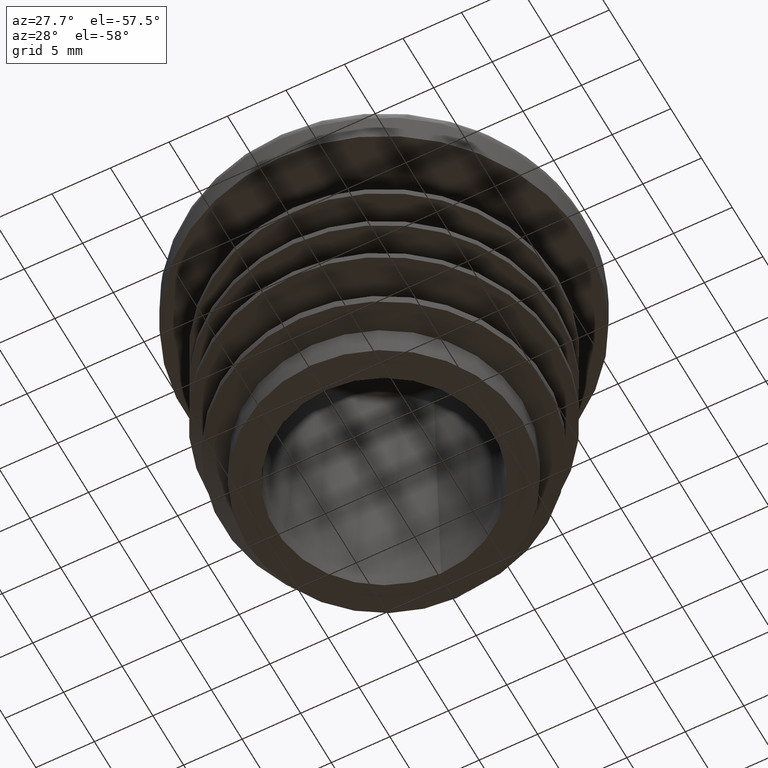
[diagram: clean part render]
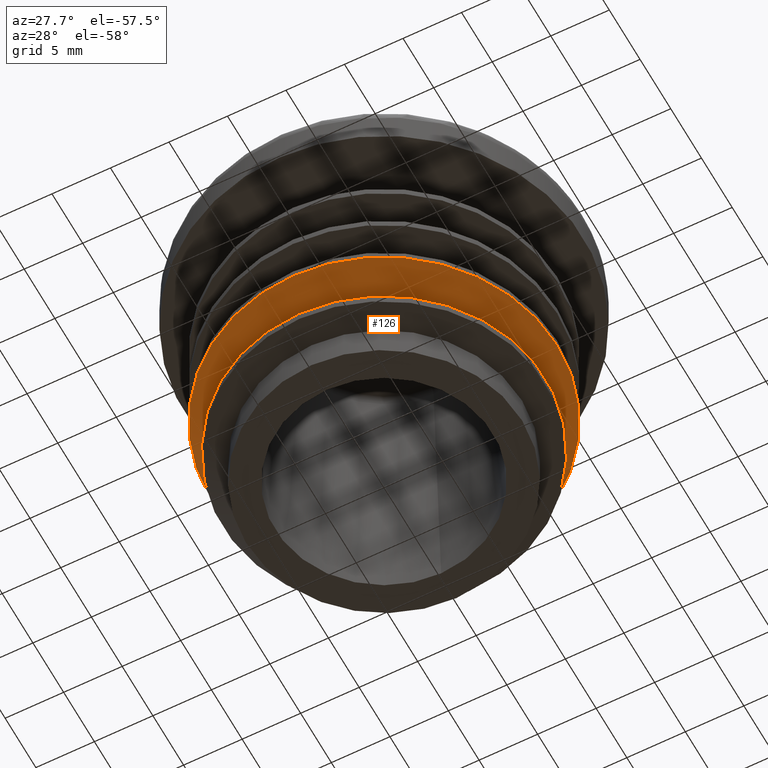
[diagram: same view with one face highlighted and labeled with its STEP entity id]
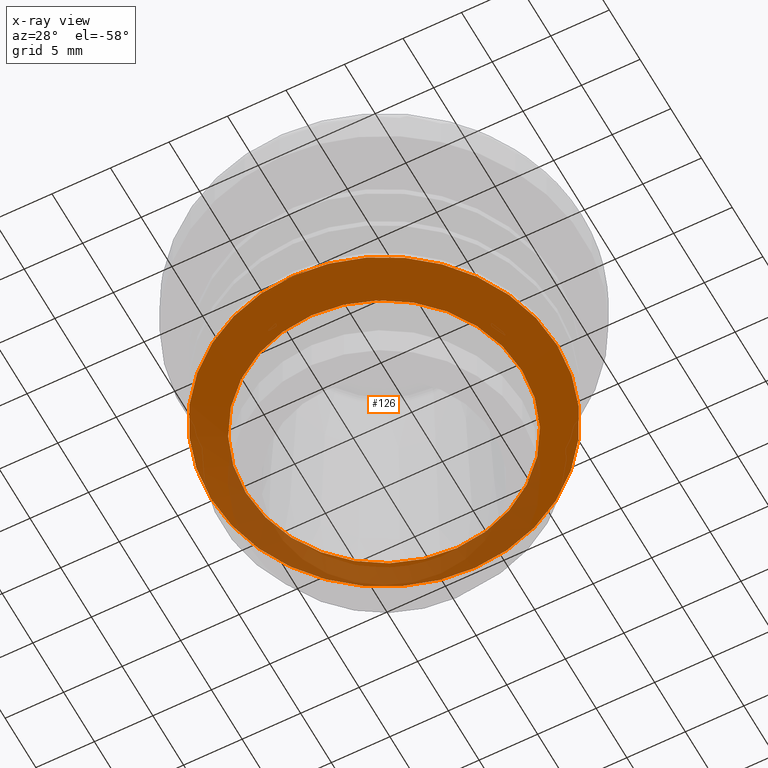
[diagram: x-ray of the same camera — body ghosted, the highlighted face saturated]
A machine part, auxiliary view. The second image highlights one B-rep face of the part: STEP entity #126.
The next image is the same camera in x-ray: the body ghosted, the highlighted face saturated — about 25% of this face is hidden behind the body in this view.
In plain terms, the highlighted conical surface has half-angle 65 deg.
Its self-contained STEP definition (entity closure, byte-faithful):
#126 = ADVANCED_FACE( '', ( #291, #292 ), #293, .T. );
#291 = FACE_BOUND( '', #717, .T. );
#292 = FACE_OUTER_BOUND( '', #718, .T. );
#293 = CONICAL_SURFACE( '', #719, 14.8000000000000, 1.13446401379631 );
#717 = EDGE_LOOP( '', ( #1231 ) );
#718 = EDGE_LOOP( '', ( #1232 ) );
#719 = AXIS2_PLACEMENT_3D( '', #1233, #1234, #1235 );
#1231 = ORIENTED_EDGE( '', *, *, #1679, .F. );
#1232 = ORIENTED_EDGE( '', *, *, #1678, .T. );
#1233 = CARTESIAN_POINT( '', ( 0.000000000000000, -8.32798267214885E-016, 8.39892297446501 ) );
#1234 = DIRECTION( '', ( 0.000000000000000, 6.12303176911189E-017, 1.00000000000000 ) );
#1235 = DIRECTION( '', ( 0.000000000000000, -1.00000000000000, 6.12303176911189E-017 ) );
#1678 = EDGE_CURVE( '', #1954, #1954, #1955, .T. );
#1679 = EDGE_CURVE( '', #1956, #1956, #1957, .T. );
#1954 = VERTEX_POINT( '', #2915 );
#1955 = CIRCLE( '', #2916, 14.8000000000000 );
#1956 = VERTEX_POINT( '', #2917 );
#1957 = CIRCLE( '', #2918, 11.8000000000000 );
#2915 = CARTESIAN_POINT( '', ( 0.000000000000000, 14.8000000000000, 8.39892297446501 ) );
#2916 = AXIS2_PLACEMENT_3D( '', #3404, #3405, #3406 );
#2917 = CARTESIAN_POINT( '', ( 0.000000000000000, 11.8000000000000, 7.00000000000001 ) );
#2918 = AXIS2_PLACEMENT_3D( '', #3407, #3408, #3409 );
#3404 = CARTESIAN_POINT( '', ( 0.000000000000000, -8.32798267214885E-016, 8.39892297446501 ) );
#3405 = DIRECTION( '', ( 0.000000000000000, -6.12303176911189E-017, -1.00000000000000 ) );
#3406 = DIRECTION( '', ( 0.000000000000000, 1.00000000000000, -6.12303176911189E-017 ) );
#3407 = CARTESIAN_POINT( '', ( 0.000000000000000, -9.18454765366782E-016, 7.00000000000001 ) );
#3408 = DIRECTION( '', ( 0.000000000000000, -6.12303176911189E-017, -1.00000000000000 ) );
#3409 = DIRECTION( '', ( 0.000000000000000, 1.00000000000000, -6.12303176911189E-017 ) );